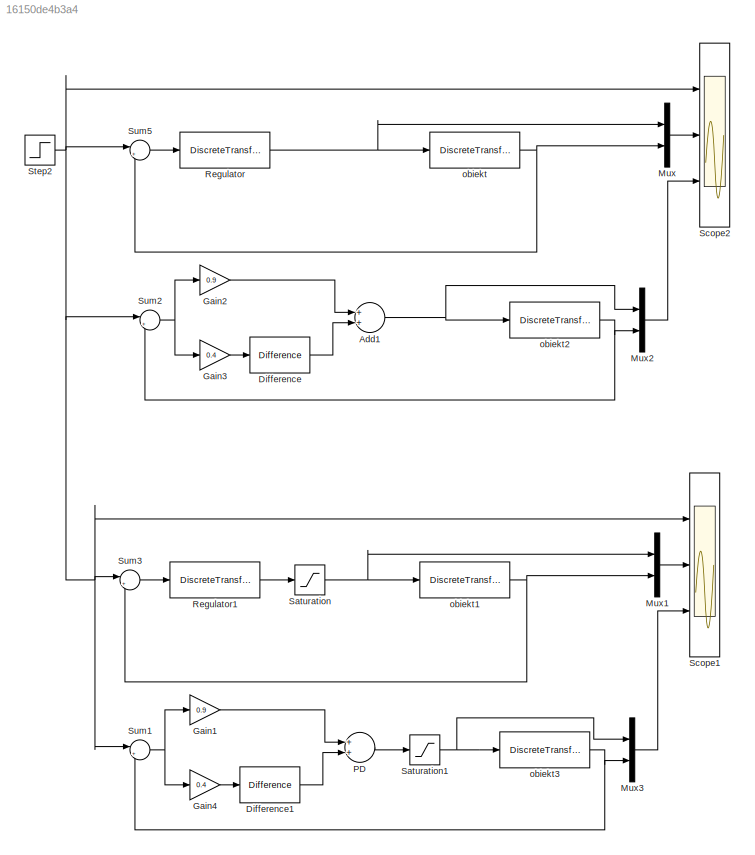
MODEL slx_16150de4b3a4
KIND model
BLOCK [Sum] Add1
  InputSameDT = off
  OutDataTypeStr = Inherit: Inherit via internal rule
  Ports = [2, 1]
  SaturateOnIntegerOverflow = off
BLOCK [Reference] Difference  REF=simulink/Discrete/Difference
  DoSatur = off
  ICPrevInput = 0.0
  InputProcessing = Inherited
  LockScale = off
  OutDataType = fixdt(1, 16)
  OutDataTypeStr = Inherit: Inherit via internal rule
  OutMax = []
  OutMin = []
  OutScaling = 2^-10
  OutputDataTypeScalingMode = Inherit via internal rule
  Ports = [1, 1]
  RndMeth = Floor
  SourceBlock = simulink/Discrete/Difference
  SourceType = Difference
BLOCK [Reference] Difference1  REF=simulink/Discrete/Difference
  DoSatur = off
  ICPrevInput = 0.0
  InputProcessing = Inherited
  LockScale = off
  OutDataType = fixdt(1, 16)
  OutDataTypeStr = Inherit: Inherit via internal rule
  OutMax = []
  OutMin = []
  OutScaling = 2^-10
  OutputDataTypeScalingMode = Inherit via internal rule
  Ports = [1, 1]
  RndMeth = Floor
  SourceBlock = simulink/Discrete/Difference
  SourceType = Difference
BLOCK [Gain] Gain1
  Gain = 0.9
  OutDataTypeStr = Inherit: Inherit via internal rule
  ParamDataTypeStr = Inherit: Inherit via internal rule
  SaturateOnIntegerOverflow = off
BLOCK [Gain] Gain2
  Gain = 0.9
  OutDataTypeStr = Inherit: Inherit via internal rule
  ParamDataTypeStr = Inherit: Inherit via internal rule
  SaturateOnIntegerOverflow = off
BLOCK [Gain] Gain3
  Gain = 0.4
  OutDataTypeStr = Inherit: Inherit via internal rule
  ParamDataTypeStr = Inherit: Inherit via internal rule
  SaturateOnIntegerOverflow = off
BLOCK [Gain] Gain4
  Gain = 0.4
  OutDataTypeStr = Inherit: Inherit via internal rule
  ParamDataTypeStr = Inherit: Inherit via internal rule
  SaturateOnIntegerOverflow = off
BLOCK [Mux] Mux
  DisplayOption = bar
  Inputs = 2
  Ports = [2, 1]
BLOCK [Mux] Mux1
  DisplayOption = bar
  Inputs = 2
  Ports = [2, 1]
BLOCK [Mux] Mux2
  DisplayOption = bar
  Inputs = 2
  Ports = [2, 1]
BLOCK [Mux] Mux3
  DisplayOption = bar
  Inputs = 2
  Ports = [2, 1]
BLOCK [Sum] PD
  InputSameDT = off
  OutDataTypeStr = Inherit: Inherit via internal rule
  Ports = [2, 1]
  SaturateOnIntegerOverflow = off
BLOCK [DiscreteTransferFcn] Regulator
  Denominator = Mr
  InputPortMap = u0
  Numerator = Lr
  Ports = [1, 1]
BLOCK [DiscreteTransferFcn] Regulator1
  Denominator = Mr
  InputPortMap = u0
  Numerator = Lr
  Ports = [1, 1]
BLOCK [Saturate] Saturation
  InputPortMap = u0
  LowerLimit = -2
  Ports = [1, 1]
  UpperLimit = 2
BLOCK [Saturate] Saturation1
  InputPortMap = u0
  LowerLimit = -2
  Ports = [1, 1]
  UpperLimit = 2
BLOCK [Scope] Scope1
  Floating = off
  LegendLocations = 0.84577     0.92197      0.1062    0.023932\n0.83856     0.59112     0.13301    0.042037\n0.82839     0.27754     0.14068    0.042037
  NumInputPorts = 3
  Ports = [3]
  ShowLegends = on
  YMax = 2~5~5
  YMin = 0~-5~-5
  ZoomMode = xonly
BLOCK [Scope] Scope2
  Floating = off
  LegendLocations = 0.84577     0.92197      0.1062    0.023932\n0.83856     0.59112     0.12994    0.042037\n0.82839     0.27754     0.11462    0.042037
  NumInputPorts = 3
  Ports = [3]
  SaveName = ScopeData2
  ShowLegends = on
  YMax = 2~5~5
  YMin = 0~-5~-5
  ZoomMode = xonly
BLOCK [Step] Step2
  SampleTime = 0.1
  Time = 0.1
BLOCK [Sum] Sum1
  IconShape = round
  InputSameDT = off
  Inputs = |+-
  OutDataTypeStr = Inherit: Inherit via internal rule
  Ports = [2, 1]
  SaturateOnIntegerOverflow = off
BLOCK [Sum] Sum2
  IconShape = round
  InputSameDT = off
  Inputs = |+-
  OutDataTypeStr = Inherit: Inherit via internal rule
  Ports = [2, 1]
  SaturateOnIntegerOverflow = off
BLOCK [Sum] Sum3
  IconShape = round
  InputSameDT = off
  Inputs = |+-
  OutDataTypeStr = Inherit: Inherit via internal rule
  Ports = [2, 1]
  SaturateOnIntegerOverflow = off
BLOCK [Sum] Sum5
  IconShape = round
  InputSameDT = off
  Inputs = |+-
  OutDataTypeStr = Inherit: Inherit via internal rule
  Ports = [2, 1]
  SaturateOnIntegerOverflow = off
BLOCK [DiscreteTransferFcn] obiekt
  Denominator = Mo
  InputPortMap = u0
  Numerator = Lo
  Ports = [1, 1]
BLOCK [DiscreteTransferFcn] obiekt1
  Denominator = Mo
  InputPortMap = u0
  Numerator = Lo
  Ports = [1, 1]
BLOCK [DiscreteTransferFcn] obiekt2
  Denominator = Mo
  InputPortMap = u0
  Numerator = Lo
  Ports = [1, 1]
BLOCK [DiscreteTransferFcn] obiekt3
  Denominator = Mo
  InputPortMap = u0
  Numerator = Lo
  Ports = [1, 1]
NET Add1:1 -> Mux2:1, obiekt2:1
LINE Difference1:1 -> PD:2
LINE Difference:1 -> Add1:2
LINE Gain1:1 -> PD:1
LINE Gain2:1 -> Add1:1
LINE Gain3:1 -> Difference:1
LINE Gain4:1 -> Difference1:1
LINE Mux1:1 -> Scope1:2
LINE Mux2:1 -> Scope2:3
LINE Mux3:1 -> Scope1:3
LINE Mux:1 -> Scope2:2
LINE PD:1 -> Saturation1:1
LINE Regulator1:1 -> Saturation:1
NET Regulator:1 -> Mux:1, obiekt:1
NET Saturation1:1 -> Mux3:1, obiekt3:1
NET Saturation:1 -> Mux1:1, obiekt1:1
NET Step2:1 -> Scope1:1, Scope2:1, Sum1:1, Sum2:1, Sum3:1, Sum5:1
NET Sum1:1 -> Gain1:1, Gain4:1
NET Sum2:1 -> Gain2:1, Gain3:1
LINE Sum3:1 -> Regulator1:1
LINE Sum5:1 -> Regulator:1
NET obiekt1:1 -> Mux1:2, Sum3:2
NET obiekt2:1 -> Mux2:2, Sum2:2
NET obiekt3:1 -> Mux3:2, Sum1:2
NET obiekt:1 -> Mux:2, Sum5:2
note: NET lines group one-source signal fan-out (src -> all destinations, sorted); 1:1 wires keep LINE
